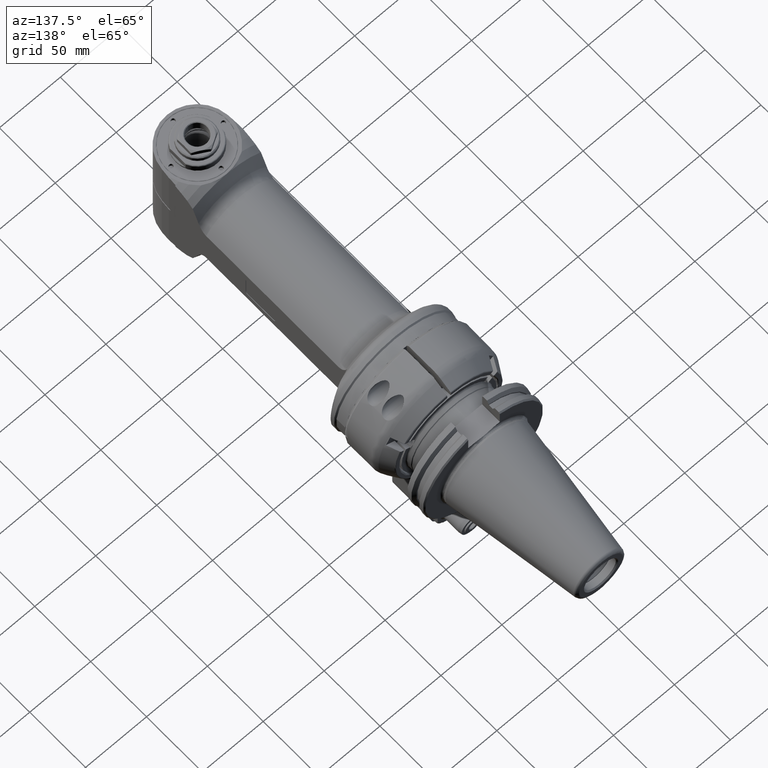
[diagram: clean part render]
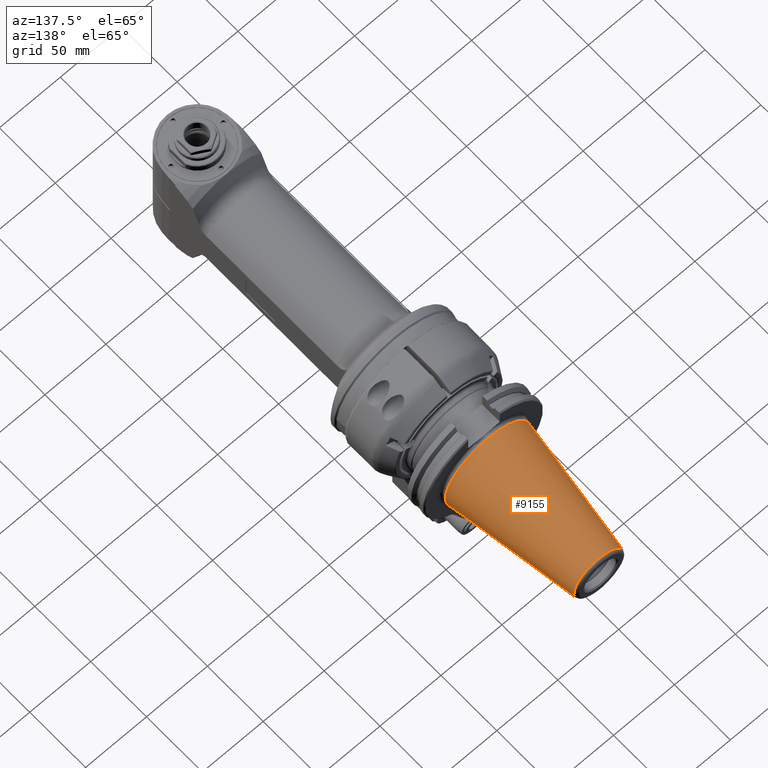
[diagram: same view with one face highlighted and labeled with its STEP entity id]
A machine part, auxiliary view. The second image highlights one B-rep face of the part: STEP entity #9155.
In plain terms, the highlighted conical surface has half-angle 8.297 deg.
Its self-contained STEP definition (entity closure, byte-faithful):
#309=CONICAL_SURFACE('',#10070,27.67265681028,0.144812411498922);
#697=LINE('',#15711,#1295);
#1295=VECTOR('',#12099,27.67265681028);
#2325=FACE_OUTER_BOUND('',#2919,.T.);
#2919=EDGE_LOOP('',(#7484,#7485,#7486,#7487,#7488,#7489));
#3544=CIRCLE('',#10068,34.925);
#3545=CIRCLE('',#10069,34.925);
#3546=CIRCLE('',#10071,20.42031362057);
#3547=CIRCLE('',#10072,20.42031362057);
#4265=VERTEX_POINT('',#15704);
#4266=VERTEX_POINT('',#15705);
#4267=VERTEX_POINT('',#15710);
#4268=VERTEX_POINT('',#15712);
#5408=EDGE_CURVE('',#4265,#4266,#3544,.T.);
#5410=EDGE_CURVE('',#4266,#4265,#3545,.T.);
#5411=EDGE_CURVE('',#4265,#4267,#697,.T.);
#5412=EDGE_CURVE('',#4268,#4267,#3546,.T.);
#5413=EDGE_CURVE('',#4267,#4268,#3547,.T.);
#7484=ORIENTED_EDGE('',*,*,#5408,.F.);
#7485=ORIENTED_EDGE('',*,*,#5411,.T.);
#7486=ORIENTED_EDGE('',*,*,#5412,.F.);
#7487=ORIENTED_EDGE('',*,*,#5413,.F.);
#7488=ORIENTED_EDGE('',*,*,#5411,.F.);
#7489=ORIENTED_EDGE('',*,*,#5410,.F.);
#9155=ADVANCED_FACE('',(#2325),#309,.T.);
#10068=AXIS2_PLACEMENT_3D('',#15706,#12092,#12093);
#10069=AXIS2_PLACEMENT_3D('',#15708,#12095,#12096);
#10070=AXIS2_PLACEMENT_3D('',#15709,#12097,#12098);
#10071=AXIS2_PLACEMENT_3D('',#15713,#12100,#12101);
#10072=AXIS2_PLACEMENT_3D('',#15714,#12102,#12103);
#12092=DIRECTION('center_axis',(0.,-1.,0.));
#12093=DIRECTION('ref_axis',(0.,0.,1.));
#12095=DIRECTION('center_axis',(0.,-1.,0.));
#12096=DIRECTION('ref_axis',(0.,0.,1.));
#12097=DIRECTION('center_axis',(0.,-1.,0.));
#12098=DIRECTION('ref_axis',(0.,0.,1.));
#12099=DIRECTION('',(-1.76724869581176E-17,0.98953299358046,0.144306807239621));
#12100=DIRECTION('center_axis',(0.,1.,0.));
#12101=DIRECTION('ref_axis',(0.,0.,1.));
#12102=DIRECTION('center_axis',(0.,1.,0.));
#12103=DIRECTION('ref_axis',(0.,0.,1.));
#15704=CARTESIAN_POINT('',(0.,74.,-34.925));
#15705=CARTESIAN_POINT('',(4.27707894602218E-15,73.9999999999999,34.9250000000004));
#15706=CARTESIAN_POINT('Origin',(0.,74.,0.));
#15708=CARTESIAN_POINT('Origin',(0.,74.,0.));
#15709=CARTESIAN_POINT('Origin',(0.,123.730383509,0.));
#15710=CARTESIAN_POINT('',(2.50076717129998E-15,173.460767018098,-20.4203136205566));
#15711=CARTESIAN_POINT('',(3.38892305866126E-15,123.730383509,-27.67265681028));
#15712=CARTESIAN_POINT('',(-20.42031362057,173.4607670181,-2.50076717130162E-15));
#15713=CARTESIAN_POINT('Origin',(0.,173.4607670181,0.));
#15714=CARTESIAN_POINT('Origin',(0.,173.4607670181,0.));